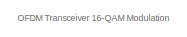
[diagram: root canvas - part 1/5, top center region]
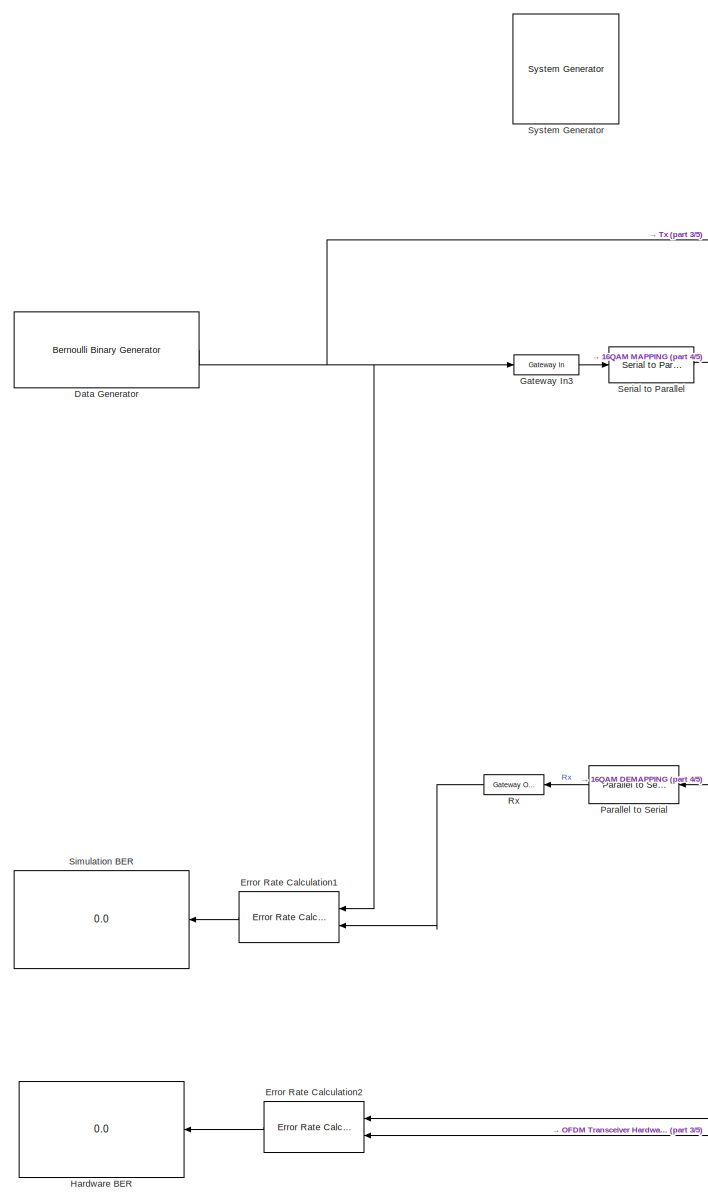
[diagram: root canvas - part 2/5, left side, full height]
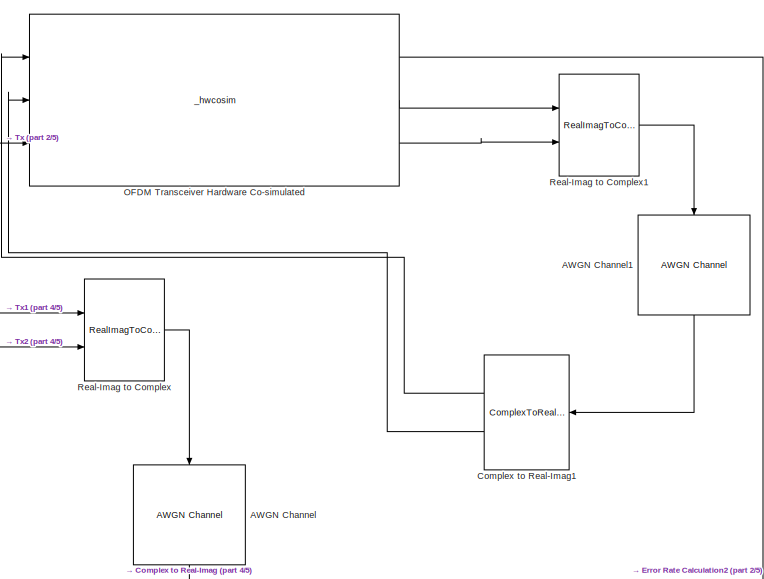
[diagram: root canvas - part 3/5, middle right region]
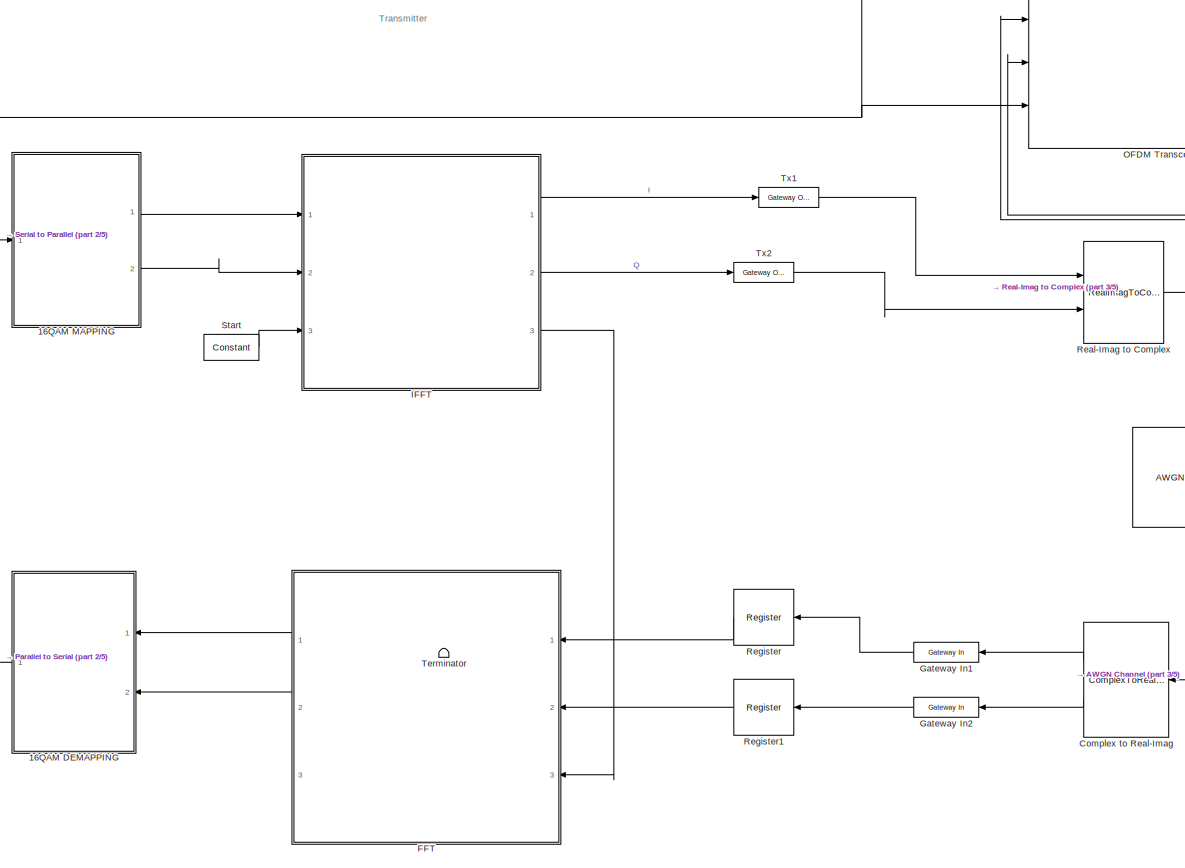
[diagram: root canvas - part 4/5, central region]
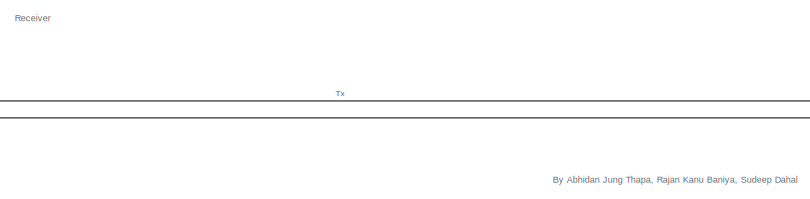
[diagram: root canvas - part 5/5, bottom center region]
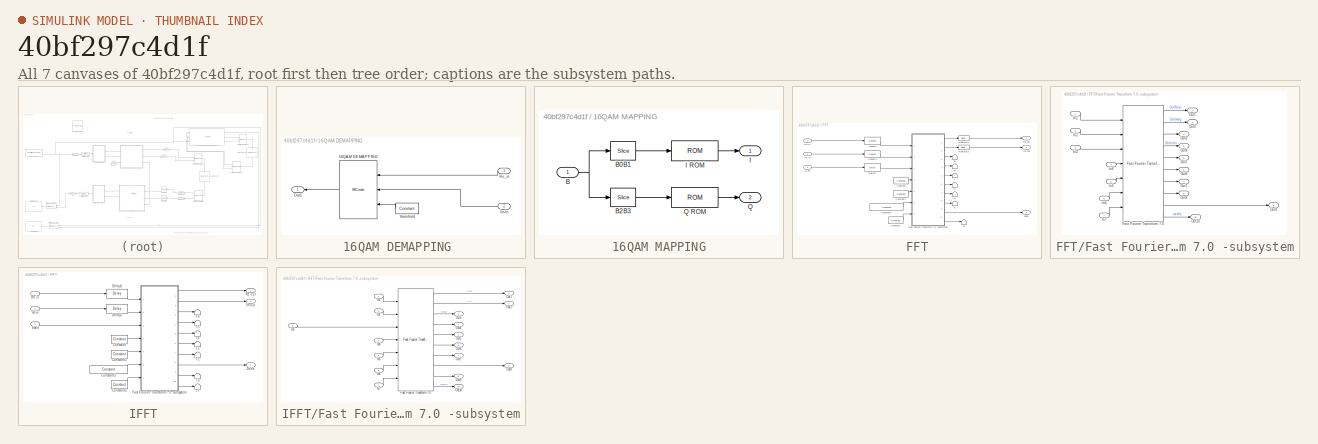
[diagram: thumbnail index - all 7 canvases of the model, root first then tree order]
MODEL slx_40bf297c4d1f
KIND model
BLOCK [Reference]  System Generator  REF=xbsIndex_r4/ System Generator
  AttributesFormatString = System\nGenerator
  Impl_file = ISE Defaults
  Ports = []
  SourceBlock = xbsIndex_r4/ System Generator
  SourceType = Xilinx System Generator Block
  Synth_file = XST Defaults
  Tag = genX
  UserDataPersistent = on
  block_type = sysgen
  block_version = 10.1.3
  clock_wrapper = Clock Enables
  core_generation = According to Block Masks
  dbl_ovrd = According to Block Masks
  dcm_input_clock_period = 100
  deprecated_control = off
  directory = ./netlist
  eval_field = 0
  has_advanced_control = 0
  incr_netlist = off
  infoedit = System Generator
  package = fg320
  part = xc3s500e
  proj_type = Project Navigator
  run_coregen = off
  sg_icon_stat = 106,110,0,0,token,white,0,58c5b5770fe5f7c311f53dbc6e73f0f6,right,,[ ],[ ]
  sg_mask_display = fprintf('','COMMENT: begin icon graphics');\npatch([0 106 106 0 0 ],[0 0 110 110 0 ],[1 1 1 ]);\npatch([2.9375 35.45 57.95 80.45 102.95 57.95 25.4375 2.9375 ],[79.975 79.975 102.475 79.975 102.475 102.475 102.475 79.975 ],[0.933333 0.203922 0.141176 ]);\npatch([25.4375 57.95 35.45 2.9375 25.4375 ],[57.475 57.475 79.975 79.975 57.475 ],[0.698039 0.0313725 0.219608 ]);\npatch([2.9375 35.45 57.95 25.4375...<+341ch>
  sggui_pos = 326,241,464,470
  simulink_period = 1
  speed = -4
  synthesis_tool = XST
  sysclk_period = 20
  testbench = off
  trim_vbits = Everywhere in SubSystem
  xilinxfamily = spartan3e
BLOCK [SubSystem] 16QAM DEMAPPING 
  FunctionWithSeparateData = off
  MaskHideContents = off
  MinAlgLoopOccurrences = off
  Opaque = off
  Ports = [2, 1]
  PropExecContextOutsideSubsystem = off
  RTWSystemCode = Auto
  RequestExecContextInheritance = off
BLOCK [Reference] 16QAM DEMAPPING /16QAM DEMAPPING  REF=xbsIndex_r4/MCode
  Ports = [3, 1]
  SourceBlock = xbsIndex_r4/MCode
  SourceType = Xilinx MCode Block Block
  block_type = mcode
  block_version = 10.1.3
  dbl_ovrd = off
  defparams = {}
  enable_debug = off
  enable_stdout = off
  explicit_period = off
  has_advanced_control = 0
  hide_port_list = {}
  infoedit = Pass input values to a MATLAB function for evaluation in Xilinx fixed-point type. The input ports of the block are input arguments of the function. The output ports of the block are output arguments of the function.
  inputsTable = {'boundInpExpr'=>['','',''],'inputs'=>['I','Q','Thrd']}
  mfname = QAM16_DEM
  outputsTable = {'outputs'=>['B'],'suppressOut'=>['off']}
  period = 1
  sg_icon_stat = 90,140,3,1,white,blue,0,065eba02,left,,[ ],[ ]
  sg_mask_display = fprintf('','COMMENT: begin icon graphics');\npatch([0 90 90 0 0 ],[0 0 140 140 0 ],[0.77 0.82 0.91 ]);\nplot([0 90 90 0 0 ],[0 0 140 140 0 ]);\npatch([18.3 35.64 47.64 59.64 71.64 47.64 30.3 18.3 ],[83.32 83.32 95.32 83.32 95.32 95.32 95.32 83.32 ],[1 1 1 ]);\npatch([30.3 47.64 35.64 18.3 30.3 ],[71.32 71.32 83.32 83.32 71.32 ],[0.931 0.946 0.973 ]);\npatch([18.3 35.64 47.64 30.3 18.3 ],[59.32 59.32 71...<+491ch>
  sggui_pos = 124,179,348,490
  suppress_output = 1
  xl_area = [60 0 0 110 0 0 0]
  xl_use_area = off
BLOCK [Inport] 16QAM DEMAPPING /Im-in
  IconDisplay = Port number
  Port = 2
BLOCK [Outport] 16QAM DEMAPPING /Out1
  IconDisplay = Port number
BLOCK [Inport] 16QAM DEMAPPING /Re_in
  IconDisplay = Port number
BLOCK [Reference] 16QAM DEMAPPING /threshold  REF=xbsIndex_r4/Constant
  Ports = [0, 1]
  SourceBlock = xbsIndex_r4/Constant
  SourceType = Xilinx Constant Block Block
  arith_type = Signed (2's comp)
  bin_pt = 15
  block_type = constant
  block_version = 10.1.3
  carry = CIN
  const = 0.25
  dbl_ovrd = off
  dsp48_infoedit = The use of this block for DSP48 instructions is deprecated.  Please use the Opmode block.
  equ = P=C
  exp_width = 8
  explicit_period = off
  frac_width = 24
  gui_display_data_type = Fixed-point
  has_advanced_control = 0
  inp1 = P
  inp2 = PCIN>>17
  n_bits = 16
  opr = +
  opselect = C
  period = 1
  preci_type = Single
  sg_icon_stat = 55,26,0,1,white,blue,0,e9bd18fb,left,,[ ],[ ]
  sg_mask_display = fprintf('','COMMENT: begin icon graphics');\npatch([0 55 55 0 0 ],[0 0 26 26 0 ],[0.77 0.82 0.91 ]);\nplot([0 55 55 0 0 ],[0 0 26 26 0 ]);\npatch([20.325 24.66 27.66 30.66 33.66 27.66 23.325 20.325 ],[16.33 16.33 19.33 16.33 19.33 19.33 19.33 16.33 ],[1 1 1 ]);\npatch([23.325 27.66 24.66 20.325 23.325 ],[13.33 13.33 16.33 16.33 13.33 ],[0.931 0.946 0.973 ]);\npatch([20.325 24.66 27.66 23.325 20.325 ],[...<+326ch>
  sggui_pos = 597,182,414,392
BLOCK [SubSystem] 16QAM MAPPING
  FunctionWithSeparateData = off
  MaskHideContents = off
  MinAlgLoopOccurrences = off
  Opaque = off
  Ports = [1, 2]
  PropExecContextOutsideSubsystem = off
  RTWSystemCode = Auto
  RequestExecContextInheritance = off
BLOCK [Inport] 16QAM MAPPING/B
  IconDisplay = Port number
BLOCK [Reference] 16QAM MAPPING/B0B1  REF=xbsIndex_r4/Slice
  Ports = [1, 1]
  SourceBlock = xbsIndex_r4/Slice
  SourceType = Xilinx Bit Slice Extractor Block
  base0 = LSB of Input
  base1 = LSB of Input
  bit0 = 0
  bit1 = 0
  block_type = slice
  block_version = 11.2
  boolean_output = off
  dbl_ovrd = off
  has_advanced_control = 0
  infoedit = Extracts a given range of bits from each input sample and presents it at the output.  The output type is ordinarily unsigned with binary point at zero, but can be Boolean when the slice is one bit wide.<br><br>Hardware notes: In hardware this block costs nothing.
  mode = Lower Bit Location + Width
  nbits = 2
  sg_icon_stat = 35,26,1,1,white,blue,0,1fd851a7,right,,[ ],[ ]
  sg_mask_display = fprintf('','COMMENT: begin icon graphics');\npatch([0 35 35 0 0 ],[0 0 26 26 0 ],[0.77 0.82 0.91 ]);\nplot([0 35 35 0 0 ],[0 0 26 26 0 ]);\npatch([10.325 14.66 17.66 20.66 23.66 17.66 13.325 10.325 ],[16.33 16.33 19.33 16.33 19.33 19.33 19.33 16.33 ],[1 1 1 ]);\npatch([13.325 17.66 14.66 10.325 13.325 ],[13.33 13.33 16.33 16.33 13.33 ],[0.931 0.946 0.973 ]);\npatch([10.325 14.66 17.66 13.325 10.325 ],[...<+328ch>
  sggui_pos = 507,171,460,424
BLOCK [Reference] 16QAM MAPPING/B2B3  REF=xbsIndex_r4/Slice
  Ports = [1, 1]
  SourceBlock = xbsIndex_r4/Slice
  SourceType = Xilinx Bit Slice Extractor Block
  base0 = MSB of Input
  base1 = MSB of Input
  bit0 = 0
  bit1 = 0
  block_type = slice
  block_version = 11.2
  boolean_output = off
  dbl_ovrd = off
  has_advanced_control = 0
  infoedit = Extracts a given range of bits from each input sample and presents it at the output.  The output type is ordinarily unsigned with binary point at zero, but can be Boolean when the slice is one bit wide.<br><br>Hardware notes: In hardware this block costs nothing.
  mode = Upper Bit Location + Width
  nbits = 2
  sg_icon_stat = 35,26,1,1,white,blue,0,1fd851a7,right,,[ ],[ ]
  sg_mask_display = fprintf('','COMMENT: begin icon graphics');\npatch([0 35 35 0 0 ],[0 0 26 26 0 ],[0.77 0.82 0.91 ]);\nplot([0 35 35 0 0 ],[0 0 26 26 0 ]);\npatch([10.325 14.66 17.66 20.66 23.66 17.66 13.325 10.325 ],[16.33 16.33 19.33 16.33 19.33 19.33 19.33 16.33 ],[1 1 1 ]);\npatch([13.325 17.66 14.66 10.325 13.325 ],[13.33 13.33 16.33 16.33 13.33 ],[0.931 0.946 0.973 ]);\npatch([10.325 14.66 17.66 13.325 10.325 ],[...<+328ch>
  sggui_pos = 498,213,460,424
BLOCK [Outport] 16QAM MAPPING/I
  IconDisplay = Port number
BLOCK [Reference] 16QAM MAPPING/I ROM  REF=xbsIndex_r4/ROM
  Ports = [1, 1]
  SourceBlock = xbsIndex_r4/ROM
  SourceType = Xilinx Single Port Read-Only Memory Block
  arith_type = Signed  (2's comp)
  bin_pt = 15
  block_type = sprom
  block_version = 10.1.3
  dbl_ovrd = off
  depth = 4
  distributed_mem = Block RAM
  en = off
  exp_width = 8
  frac_width = 24
  gui_display_data_type = Fixed-point
  has_advanced_control = 0
  initVector = [-3 +3 -1 +1]./3
  init_reg = 0
  latency = 1
  n_bits = 16
  optimize = Area
  preci_type = Single
  rst = off
  sg_icon_stat = 65,28,1,1,white,blue,0,bbc23d60,right,,[ ],[ ]
  sg_mask_display = fprintf('','COMMENT: begin icon graphics');\npatch([0 65 65 0 0 ],[0 0 28 28 0 ],[0.77 0.82 0.91 ]);\nplot([0 65 65 0 0 ],[0 0 28 28 0 ]);\npatch([23.1 28.88 32.88 36.88 40.88 32.88 27.1 23.1 ],[18.44 18.44 22.44 18.44 22.44 22.44 22.44 18.44 ],[1 1 1 ]);\npatch([27.1 32.88 28.88 23.1 27.1 ],[14.44 14.44 18.44 18.44 14.44 ],[0.931 0.946 0.973 ]);\npatch([23.1 28.88 32.88 27.1 23.1 ],[10.44 10.44 14.44 ...<+348ch>
  sggui_pos = 172,101,482,308
  use_rpm = on
  xl_area = [0 0 1 0 0 0 0]
  xl_use_area = off
BLOCK [Outport] 16QAM MAPPING/Q
  IconDisplay = Port number
  Port = 2
BLOCK [Reference] 16QAM MAPPING/Q ROM  REF=xbsIndex_r4/ROM
  Ports = [1, 1]
  SourceBlock = xbsIndex_r4/ROM
  SourceType = Xilinx Single Port Read-Only Memory Block
  arith_type = Signed  (2's comp)
  bin_pt = 15
  block_type = sprom
  block_version = 10.1.3
  dbl_ovrd = off
  depth = 4
  distributed_mem = Block RAM
  en = off
  exp_width = 8
  frac_width = 24
  gui_display_data_type = Fixed-point
  has_advanced_control = 0
  initVector = [-3 +3 -1 +1]./3
  init_reg = 0
  latency = 1
  n_bits = 16
  optimize = Area
  preci_type = Single
  rst = off
  sg_icon_stat = 65,28,1,1,white,blue,0,bbc23d60,right,,[ ],[ ]
  sg_mask_display = fprintf('','COMMENT: begin icon graphics');\npatch([0 65 65 0 0 ],[0 0 28 28 0 ],[0.77 0.82 0.91 ]);\nplot([0 65 65 0 0 ],[0 0 28 28 0 ]);\npatch([23.1 28.88 32.88 36.88 40.88 32.88 27.1 23.1 ],[18.44 18.44 22.44 18.44 22.44 22.44 22.44 18.44 ],[1 1 1 ]);\npatch([27.1 32.88 28.88 23.1 27.1 ],[14.44 14.44 18.44 18.44 14.44 ],[0.931 0.946 0.973 ]);\npatch([23.1 28.88 32.88 27.1 23.1 ],[10.44 10.44 14.44 ...<+348ch>
  sggui_pos = 135,309,348,308
  use_rpm = on
  xl_area = [0 0 1 0 0 0 0]
  xl_use_area = off
BLOCK [Reference] AWGN Channel  REF=commchan3/AWGN
Channel
  EbNodB = 10
  EsNodB = 40
  InputProcessing = Inherited (this choice will be removed - see release notes)
  Ports = [1, 1]
  Ps = 1
  SNRdB = 20
  SourceBlock = commchan3/AWGN\nChannel
  SourceType = AWGN Channel
  Tsym = 4e-6/80
  UserDataPersistent = on
  bitsPerSym = 2
  noiseMode = Signal to noise ratio  (SNR)
  seed = 67
  variance = 1
BLOCK [Reference] AWGN Channel1  REF=commchan3/AWGN
Channel
  EbNodB = 10
  EsNodB = 40
  InputProcessing = Inherited (this choice will be removed - see release notes)
  Ports = [1, 1]
  Ps = 1
  SNRdB = 20
  SourceBlock = commchan3/AWGN\nChannel
  SourceType = AWGN Channel
  Tsym = 4e-6/80
  UserDataPersistent = on
  bitsPerSym = 2
  noiseMode = Signal to noise ratio  (SNR)
  seed = 67
  variance = 1
BLOCK [ComplexToRealImag] Complex to Real-Imag
  Ports = [1, 2]
BLOCK [ComplexToRealImag] Complex to Real-Imag1
  Ports = [1, 2]
BLOCK [Reference] Data Generator  REF=commrandsrc2/Bernoulli Binary
Generator
  P = 0.5
  Ports = [0, 1]
  SourceBlock = commrandsrc2/Bernoulli Binary\nGenerator
  SourceType = Bernoulli Binary Generator
  Ts = 1
  frameBased = off
  orient = off
  outDataType = double
  sampPerFrame = 1
  seed = 61
BLOCK [Reference] Error Rate Calculation1  REF=commsink2/Error Rate
Calculation
  N = 1672
  PMode = Port
  Ports = [2, 1]
  RsMode2 = off
  SourceBlock = commsink2/Error Rate\nCalculation
  SourceType = Error Rate Calculation
  WsName = ErrorVec
  cp_mode = Entire frame
  maxBits = 1e6
  numErr = 100
  st_delay = 700
  stop = off
  subframe = []
BLOCK [Reference] Error Rate Calculation2  REF=commsink2/Error Rate
Calculation
  N = 1672
  PMode = Port
  Ports = [2, 1]
  RsMode2 = off
  SourceBlock = commsink2/Error Rate\nCalculation
  SourceType = Error Rate Calculation
  WsName = ErrorVec
  cp_mode = Entire frame
  maxBits = 1e6
  numErr = 100
  st_delay = 700
  stop = off
  subframe = []
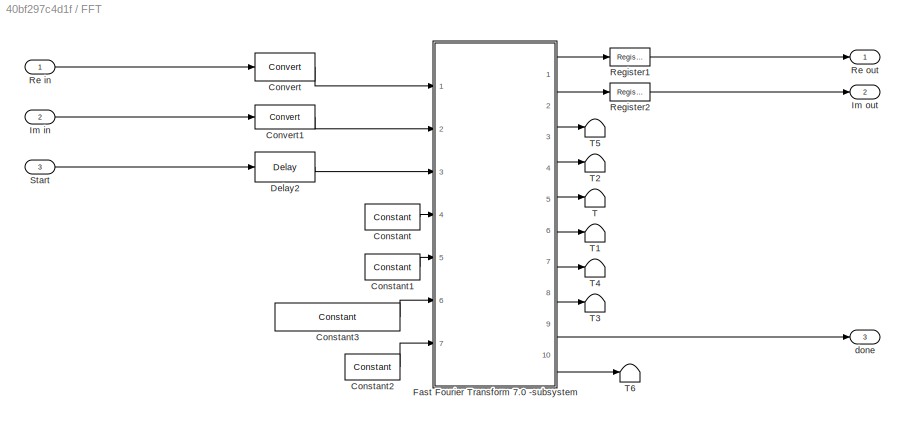
BLOCK [SubSystem] FFT
  FunctionWithSeparateData = off
  MaskHideContents = off
  MinAlgLoopOccurrences = off
  Opaque = off
  Ports = [3, 3]
  PropExecContextOutsideSubsystem = off
  RTWSystemCode = Auto
  RequestExecContextInheritance = off
BLOCK [Reference] FFT/Constant  REF=xbsIndex_r4/Constant
  Ports = [0, 1]
  SourceBlock = xbsIndex_r4/Constant
  SourceType = Xilinx Constant Block Block
  arith_type = Boolean
  bin_pt = 14
  block_type = constant
  block_version = 10.1.3
  carry = CIN
  const = 1
  dbl_ovrd = off
  dsp48_infoedit = The use of this block for DSP48 instructions is deprecated.  Please use the Opmode block.
  equ = P=C
  exp_width = 8
  explicit_period = off
  frac_width = 24
  gui_display_data_type = Fixed-point
  has_advanced_control = 0
  inp1 = P
  inp2 = PCIN>>17
  n_bits = 16
  opr = +
  opselect = C
  period = 1
  preci_type = Single
  sg_icon_stat = 55,26,0,1,white,blue,0,1c72b5be,right,,[ ],[ ]
  sg_mask_display = fprintf('','COMMENT: begin icon graphics');\npatch([0 55 55 0 0 ],[0 0 26 26 0 ],[0.77 0.82 0.91 ]);\nplot([0 55 55 0 0 ],[0 0 26 26 0 ]);\npatch([20.325 24.66 27.66 30.66 33.66 27.66 23.325 20.325 ],[16.33 16.33 19.33 16.33 19.33 19.33 19.33 16.33 ],[1 1 1 ]);\npatch([23.325 27.66 24.66 20.325 23.325 ],[13.33 13.33 16.33 16.33 13.33 ],[0.931 0.946 0.973 ]);\npatch([20.325 24.66 27.66 23.325 20.325 ],[...<+323ch>  <repeated x7 — deduplicated; at blocks: Constant, Constant1, Constant2, Start>
  sggui_pos = 20,20,414,344
BLOCK [Reference] FFT/Constant1  REF=xbsIndex_r4/Constant
  Ports = [0, 1]
  SourceBlock = xbsIndex_r4/Constant
  SourceType = Xilinx Constant Block Block
  arith_type = Boolean
  bin_pt = 14
  block_type = constant
  block_version = 10.1.3
  carry = CIN
  const = 1
  dbl_ovrd = off
  dsp48_infoedit = The use of this block for DSP48 instructions is deprecated.  Please use the Opmode block.
  equ = P=C
  exp_width = 8
  explicit_period = off
  frac_width = 24
  gui_display_data_type = Fixed-point
  has_advanced_control = 0
  inp1 = P
  inp2 = PCIN>>17
  n_bits = 16
  opr = +
  opselect = C
  period = 1
  preci_type = Single
  sg_icon_stat = 55,26,0,1,white,blue,0,1c72b5be,right,,[ ],[ ]
  sggui_pos = 20,20,414,344
BLOCK [Reference] FFT/Constant2  REF=xbsIndex_r4/Constant
  Ports = [0, 1]
  SourceBlock = xbsIndex_r4/Constant
  SourceType = Xilinx Constant Block Block
  arith_type = Boolean
  bin_pt = 14
  block_type = constant
  block_version = 10.1.3
  carry = CIN
  const = 1
  dbl_ovrd = off
  dsp48_infoedit = The use of this block for DSP48 instructions is deprecated.  Please use the Opmode block.
  equ = P=C
  exp_width = 8
  explicit_period = off
  frac_width = 24
  gui_display_data_type = Fixed-point
  has_advanced_control = 0
  inp1 = P
  inp2 = PCIN>>17
  n_bits = 16
  opr = +
  opselect = C
  period = 1
  preci_type = Single
  sg_icon_stat = 55,26,0,1,white,blue,0,1c72b5be,right,,[ ],[ ]
  sggui_pos = 20,20,414,344
BLOCK [Reference] FFT/Constant3  REF=xbsIndex_r4/Constant
  Ports = [0, 1]
  SourceBlock = xbsIndex_r4/Constant
  SourceType = Xilinx Constant Block Block
  arith_type = Unsigned
  bin_pt = 0
  block_type = constant
  block_version = 10.1.3
  carry = CIN
  const = bin2dec('00001')
  dbl_ovrd = off
  dsp48_infoedit = The use of this block for DSP48 instructions is deprecated.  Please use the Opmode block.
  equ = P=C
  exp_width = 8
  explicit_period = off
  frac_width = 24
  gui_display_data_type = Fixed-point
  has_advanced_control = 0
  inp1 = P
  inp2 = PCIN>>17
  n_bits = 6
  opr = +
  opselect = C
  period = 1
  preci_type = Single
  sg_icon_stat = 125,28,0,1,white,blue,0,1c72b5be,right,,[ ],[ ]
  sg_mask_display = fprintf('','COMMENT: begin icon graphics');\npatch([0 125 125 0 0 ],[0 0 28 28 0 ],[0.77 0.82 0.91 ]);\nplot([0 125 125 0 0 ],[0 0 28 28 0 ]);\npatch([53.1 58.88 62.88 66.88 70.88 62.88 57.1 53.1 ],[18.44 18.44 22.44 18.44 22.44 22.44 22.44 18.44 ],[1 1 1 ]);\npatch([57.1 62.88 58.88 53.1 57.1 ],[14.44 14.44 18.44 18.44 14.44 ],[0.931 0.946 0.973 ]);\npatch([53.1 58.88 62.88 57.1 53.1 ],[10.44 10.44 14...<+303ch>
  sggui_pos = 366,180,414,344
BLOCK [Reference] FFT/Convert  REF=xbsIndex_r4/Convert
  Ports = [1, 1]
  SourceBlock = xbsIndex_r4/Convert
  SourceType = Xilinx Type Converter Block
  arith_type = Signed  (2's comp)
  bin_pt = 15
  block_type = convert
  block_version = 9.1
  dbl_ovrd = off
  en = off
  exp_bits = 8
  float_type = Single
  fraction_bits = 24
  gui_display_data_type = Fixed-point
  has_advanced_control = 0
  infoedit = Hardware notes: rounding and saturating require hardware resources; truncating and wrapping do not.
  latency = 1
  n_bits = 16
  overflow = Wrap
  pipeline = off
  quantization = Truncate
  sg_icon_stat = 60,28,1,1,white,blue,0,0c6bad53,right,,[ ],[ ]
  sg_mask_display = fprintf('','COMMENT: begin icon graphics');\npatch([0 60 60 0 0 ],[0 0 28 28 0 ],[0.77 0.82 0.91 ]);\nplot([0 60 60 0 0 ],[0 0 28 28 0 ]);\npatch([21.1 26.88 30.88 34.88 38.88 30.88 25.1 21.1 ],[18.44 18.44 22.44 18.44 22.44 22.44 22.44 18.44 ],[1 1 1 ]);\npatch([25.1 30.88 26.88 21.1 25.1 ],[14.44 14.44 18.44 18.44 14.44 ],[0.931 0.946 0.973 ]);\npatch([21.1 26.88 30.88 25.1 21.1 ],[10.44 10.44 14.44 ...<+387ch>
  sggui_pos = 20,20,470,366
  xl_area = [0 16 0 0 0 0 0]
  xl_use_area = off
BLOCK [Reference] FFT/Convert1  REF=xbsIndex_r4/Convert
  Ports = [1, 1]
  SourceBlock = xbsIndex_r4/Convert
  SourceType = Xilinx Type Converter Block
  arith_type = Signed  (2's comp)
  bin_pt = 15
  block_type = convert
  block_version = 9.1
  dbl_ovrd = off
  en = off
  exp_bits = 8
  float_type = Single
  fraction_bits = 24
  gui_display_data_type = Fixed-point
  has_advanced_control = 0
  infoedit = Hardware notes: rounding and saturating require hardware resources; truncating and wrapping do not.
  latency = 1
  n_bits = 16
  overflow = Wrap
  pipeline = off
  quantization = Truncate
  sg_icon_stat = 60,24,1,1,white,blue,0,0c6bad53,right,,[ ],[ ]
  sg_mask_display = fprintf('','COMMENT: begin icon graphics');\npatch([0 60 60 0 0 ],[0 0 24 24 0 ],[0.77 0.82 0.91 ]);\nplot([0 60 60 0 0 ],[0 0 24 24 0 ]);\npatch([23.325 27.66 30.66 33.66 36.66 30.66 26.325 23.325 ],[15.33 15.33 18.33 15.33 18.33 18.33 18.33 15.33 ],[1 1 1 ]);\npatch([26.325 30.66 27.66 23.325 26.325 ],[12.33 12.33 15.33 15.33 12.33 ],[0.931 0.946 0.973 ]);\npatch([23.325 27.66 30.66 26.325 23.325 ],[...<+405ch>
  sggui_pos = 20,20,470,366
  xl_area = [0 16 0 0 0 0 0]
  xl_use_area = off
BLOCK [Reference] FFT/Delay2  REF=xbsIndex_r4/Delay
  Ports = [1, 1]
  SourceBlock = xbsIndex_r4/Delay
  SourceType = Xilinx Delay Block
  block_type = delay
  block_version = 10.1.3
  dbl_ovrd = off
  en = off
  has_advanced_control = 0
  infoedit = Hardware notes: A delay line is a chain, each link of which is an SRL16 followed by a flip-flop.
  infoeditControl = Selection of Reset will increase slice count due to use of real FFs and instead of SRLs
  latency = 2
  reg_retiming = off
  rst = off
  sg_icon_stat = 60,30,1,1,white,blue,0,85ce9542,right,,[ ],[ ]
  sg_mask_display = fprintf('','COMMENT: begin icon graphics');\npatch([0 60 60 0 0 ],[0 0 30 30 0 ],[0.77 0.82 0.91 ]);\nplot([0 60 60 0 0 ],[0 0 30 30 0 ]);\npatch([21.1 26.88 30.88 34.88 38.88 30.88 25.1 21.1 ],[19.44 19.44 23.44 19.44 23.44 23.44 23.44 19.44 ],[1 1 1 ]);\npatch([25.1 30.88 26.88 21.1 25.1 ],[15.44 15.44 19.44 19.44 15.44 ],[0.931 0.946 0.973 ]);\npatch([21.1 26.88 30.88 25.1 21.1 ],[11.44 11.44 15.44 ...<+304ch>
  sggui_pos = 183,233,348,282
  xl_area = [1 1 0 1 0 0 0]
  xl_use_area = off
BLOCK [SubSystem] FFT/Fast Fourier Transform 7.0 -subsystem
  FunctionWithSeparateData = off
  MaskHideContents = off
  MinAlgLoopOccurrences = off
  Opaque = off
  Ports = [7, 10]
  PropExecContextOutsideSubsystem = off
  RTWSystemCode = Auto
  RequestExecContextInheritance = off
  UserDataPersistent = on
BLOCK [Reference] FFT/Fast Fourier Transform 7.0 -subsystem/Fast Fourier Transform 7.0   REF=xbsIndex_r4/Fast Fourier Transform 7.0 
  Ports = [7, 10]
  SourceBlock = xbsIndex_r4/Fast Fourier Transform 7.0
  SourceType = Xilinx Fast Fourier Transform 7.0 Block
  block_type = xfft_v7_0
  block_version = 11.2
  butterfly_type = use_luts
  ce = off
  channels = 1
  complex_mult_type = use_mults_resources
  cyclic_prefix_insertion = off
  dsptool_ready = true
  has_advanced_control = 0
  implementation_options = automatically_select
  input_data_offset = no_offset
  input_ordering = natural_order
  input_width = 16
  ip_name = Fast Fourier Transform
  ip_version = 7.0
  ipcore_fpga_part = xlipgetpartsetting(gcb, {'virtex4', 'xc4vsx35', '-10', 'ff668'})
  memory_options_data = block_ram
  memory_options_hybrid = off
  memory_options_phase_factors = block_ram
  memory_options_reorder = distributed_ram
  number_of_stages_using_block_ram_for_data_and_phase_factors = 0
  output_ordering = natural_order
  ovflo = on
  phase_factor_width = 16
  port_translation_map = { 'ce' => 'en', 'sclr' => 'rst' }
  rounding_modes = truncation
  run_time_configurable_transform_length = off
  scaling_options = scaled
  sclr = off
  sg_icon_stat = 120,343,7,10,white,blue,0,731b7867,right,,[ ],[ ]
  sg_mask_display = fprintf('','COMMENT: begin icon graphics');\npatch([0 120 120 0 0 ],[0 0 343 343 0 ],[0.77 0.82 0.91 ]);\nplot([0 120 120 0 0 ],[0 0 343 343 0 ]);\npatch([22.175 46.74 63.74 80.74 97.74 63.74 39.175 22.175 ],[189.87 189.87 206.87 189.87 206.87 206.87 206.87 189.87 ],[1 1 1 ]);\npatch([39.175 63.74 46.74 22.175 39.175 ],[172.87 172.87 189.87 189.87 172.87 ],[0.931 0.946 0.973 ]);\npatch([22.175 46.74 63...<+1127ch>
  sggui_pos = 642,160,667,564
  simulation_model = fftv7_CModel:fftv7_cmodel
  simulation_type = external_xfix
  target_clock_frequency = 50
  target_data_throughput = 50
  transform_length = 64
  wrapper_available = true
  xl_area = [1127 1579 1 1572 0 22 0]
  xl_use_area = off
BLOCK [Inport] FFT/Fast Fourier Transform 7.0 -subsystem/In1
  IconDisplay = Port number
BLOCK [Inport] FFT/Fast Fourier Transform 7.0 -subsystem/In2
  IconDisplay = Port number
  Port = 2
BLOCK [Inport] FFT/Fast Fourier Transform 7.0 -subsystem/In3
  IconDisplay = Port number
  Port = 3
BLOCK [Inport] FFT/Fast Fourier Transform 7.0 -subsystem/In4
  IconDisplay = Port number
  Port = 4
BLOCK [Inport] FFT/Fast Fourier Transform 7.0 -subsystem/In5
  IconDisplay = Port number
  Port = 5
BLOCK [Inport] FFT/Fast Fourier Transform 7.0 -subsystem/In6
  IconDisplay = Port number
  Port = 6
BLOCK [Inport] FFT/Fast Fourier Transform 7.0 -subsystem/In7
  IconDisplay = Port number
  Port = 7
BLOCK [Outport] FFT/Fast Fourier Transform 7.0 -subsystem/Out1
  IconDisplay = Port number
BLOCK [Outport] FFT/Fast Fourier Transform 7.0 -subsystem/Out10
  IconDisplay = Port number
  Port = 10
BLOCK [Outport] FFT/Fast Fourier Transform 7.0 -subsystem/Out2
  IconDisplay = Port number
  Port = 2
BLOCK [Outport] FFT/Fast Fourier Transform 7.0 -subsystem/Out3
  IconDisplay = Port number
  Port = 3
BLOCK [Outport] FFT/Fast Fourier Transform 7.0 -subsystem/Out4
  IconDisplay = Port number
  Port = 4
BLOCK [Outport] FFT/Fast Fourier Transform 7.0 -subsystem/Out5
  IconDisplay = Port number
  Port = 5
BLOCK [Outport] FFT/Fast Fourier Transform 7.0 -subsystem/Out6
  IconDisplay = Port number
  Port = 6
BLOCK [Outport] FFT/Fast Fourier Transform 7.0 -subsystem/Out7
  IconDisplay = Port number
  Port = 7
BLOCK [Outport] FFT/Fast Fourier Transform 7.0 -subsystem/Out8
  IconDisplay = Port number
  Port = 8
BLOCK [Outport] FFT/Fast Fourier Transform 7.0 -subsystem/Out9
  IconDisplay = Port number
  Port = 9
BLOCK [Inport] FFT/Im in
  IconDisplay = Port number
  Port = 2
BLOCK [Outport] FFT/Im out
  IconDisplay = Port number
  Port = 2
BLOCK [Inport] FFT/Re in
  IconDisplay = Port number
BLOCK [Outport] FFT/Re out
  IconDisplay = Port number
BLOCK [Reference] FFT/Register1  REF=xbsIndex_r4/Register
  Ports = [1, 1]
  SourceBlock = xbsIndex_r4/Register
  SourceType = Xilinx Register Block
  block_type = register
  block_version = 9.1
  dbl_ovrd = off
  en = off
  has_advanced_control = 0
  init = 0
  rst = off
  sg_icon_stat = 40,18,1,1,white,blue,0,c80657c5,right,,[ ],[ ]
  sg_mask_display = fprintf('','COMMENT: begin icon graphics');\npatch([0 40 40 0 0 ],[0 0 18 18 0 ],[0.77 0.82 0.91 ]);\nplot([0 40 40 0 0 ],[0 0 18 18 0 ]);\npatch([15.55 18.44 20.44 22.44 24.44 20.44 17.55 15.55 ],[11.22 11.22 13.22 11.22 13.22 13.22 13.22 11.22 ],[1 1 1 ]);\npatch([17.55 20.44 18.44 15.55 17.55 ],[9.22 9.22 11.22 11.22 9.22 ],[0.931 0.946 0.973 ]);\npatch([15.55 18.44 20.44 17.55 15.55 ],[7.22 7.22 9....<+388ch>
  sggui_pos = -1,-1,-1,-1
  xl_area = [8 16 0 0 0 0 0]
  xl_use_area = off
BLOCK [Reference] FFT/Register2  REF=xbsIndex_r4/Register
  Ports = [1, 1]
  SourceBlock = xbsIndex_r4/Register
  SourceType = Xilinx Register Block
  block_type = register
  block_version = 9.1
  dbl_ovrd = off
  en = off
  has_advanced_control = 0
  init = 0
  rst = off
  sg_icon_stat = 40,18,1,1,white,blue,0,c80657c5,right,,[ ],[ ]
  sg_mask_display = fprintf('','COMMENT: begin icon graphics');\npatch([0 40 40 0 0 ],[0 0 18 18 0 ],[0.77 0.82 0.91 ]);\nplot([0 40 40 0 0 ],[0 0 18 18 0 ]);\npatch([15.55 18.44 20.44 22.44 24.44 20.44 17.55 15.55 ],[11.22 11.22 13.22 11.22 13.22 13.22 13.22 11.22 ],[1 1 1 ]);\npatch([17.55 20.44 18.44 15.55 17.55 ],[9.22 9.22 11.22 11.22 9.22 ],[0.931 0.946 0.973 ]);\npatch([15.55 18.44 20.44 17.55 15.55 ],[7.22 7.22 9....<+388ch>
  sggui_pos = -1,-1,-1,-1
  xl_area = [8 16 0 0 0 0 0]
  xl_use_area = off
BLOCK [Inport] FFT/Start
  IconDisplay = Port number
  Port = 3
BLOCK [Terminator] FFT/T
BLOCK [Terminator] FFT/T1
BLOCK [Terminator] FFT/T2
BLOCK [Terminator] FFT/T3
BLOCK [Terminator] FFT/T4
BLOCK [Terminator] FFT/T5
BLOCK [Terminator] FFT/T6
BLOCK [Outport] FFT/done
  IconDisplay = Port number
  Port = 3
BLOCK [Reference] Gateway In1  REF=xbsIndex_r4/Gateway In
  ADCChannel = '1'
  LOCs = {}
  Ports = [1, 1]
  SourceBlock = xbsIndex_r4/Gateway In
  SourceType = Xilinx Gateway In Block
  UseAsADC = off
  arith_type = Signed  (2's comp)
  bin_pt = 15
  block_type = gatewayin
  dbl_ovrd = off
  exp_width = 8
  frac_width = 24
  gui_display_data_type = Fixed-point
  has_advanced_control = 0
  hdl_port = on
  infoedit = Gateway in block.  Converts inputs of type Simulink integer, single, double and fixed-point to  Xilinx fixed-point or floating-point data type.<br><br>Hardware notes:  In hardware these blocks become top level input ports.  <repeated x3 — deduplicated; at blocks: Gateway In1, Gateway In2, Gateway In3>
  inherit_from_input = off
  locs_specified = off
  n_bits = 16
  overflow = Saturate
  period = 4
  preci_type = Single
  quantization = Round  (unbiased: +/- Inf)
  sg_icon_stat = 65,20,1,1,white,yellow,1,00d3666e,left,,[ ],[ ]
  sg_mask_display = fprintf('','COMMENT: begin icon graphics');\npatch([0 65 65 0 0 ],[0 0 20 20 0 ],[0.95 0.93 0.65 ]);\nplot([0 65 65 0 0 ],[0 0 20 20 0 ]);\npatch([27.55 30.44 32.44 34.44 36.44 32.44 29.55 27.55 ],[12.22 12.22 14.22 12.22 14.22 14.22 14.22 12.22 ],[1 1 1 ]);\npatch([29.55 32.44 30.44 27.55 29.55 ],[10.22 10.22 12.22 12.22 10.22 ],[0.985 0.979 0.895 ]);\npatch([27.55 30.44 32.44 29.55 27.55 ],[8.22 8.22...<+383ch>  <repeated x3 — deduplicated; at blocks: Gateway In1, Gateway In2, Gateway In3>
  sggui_pos = -1,-1,-1,-1
  timing_constraint = None
  xl_area = [0,0,0,0,0,0,0]
  xl_use_area = off
BLOCK [Reference] Gateway In2  REF=xbsIndex_r4/Gateway In
  ADCChannel = '1'
  LOCs = {}
  Ports = [1, 1]
  SourceBlock = xbsIndex_r4/Gateway In
  SourceType = Xilinx Gateway In Block
  UseAsADC = off
  arith_type = Signed  (2's comp)
  bin_pt = 15
  block_type = gatewayin
  dbl_ovrd = off
  exp_width = 8
  frac_width = 24
  gui_display_data_type = Fixed-point
  has_advanced_control = 0
  hdl_port = on
  inherit_from_input = off
  locs_specified = off
  n_bits = 16
  overflow = Saturate
  period = 4
  preci_type = Single
  quantization = Round  (unbiased: +/- Inf)
  sg_icon_stat = 65,20,1,1,white,yellow,1,00d3666e,left,,[ ],[ ]
  sggui_pos = -1,-1,-1,-1
  timing_constraint = None
  xl_area = [0,0,0,0,0,0,0]
  xl_use_area = off
BLOCK [Reference] Gateway In3  REF=xbsIndex_r4/Gateway In
  ADCChannel = '1'
  LOCs = {}
  Ports = [1, 1]
  SourceBlock = xbsIndex_r4/Gateway In
  SourceType = Xilinx Gateway In Block
  UseAsADC = off
  arith_type = Unsigned
  bin_pt = 0
  block_type = gatewayin
  dbl_ovrd = off
  exp_width = 8
  frac_width = 24
  gui_display_data_type = Fixed-point
  has_advanced_control = 0
  hdl_port = on
  inherit_from_input = off
  locs_specified = off
  n_bits = 1
  overflow = Saturate
  period = 1
  preci_type = Single
  quantization = Round  (unbiased: +/- Inf)
  sg_icon_stat = 65,20,1,1,white,yellow,1,00d3666e,right,,[ ],[ ]
  sggui_pos = 734,117,336,584
  timing_constraint = None
  xl_area = [0,0,0,0,0,0,0]
  xl_use_area = off
BLOCK [Display] Hardware BER
  Decimation = 1
  Ports = [1]
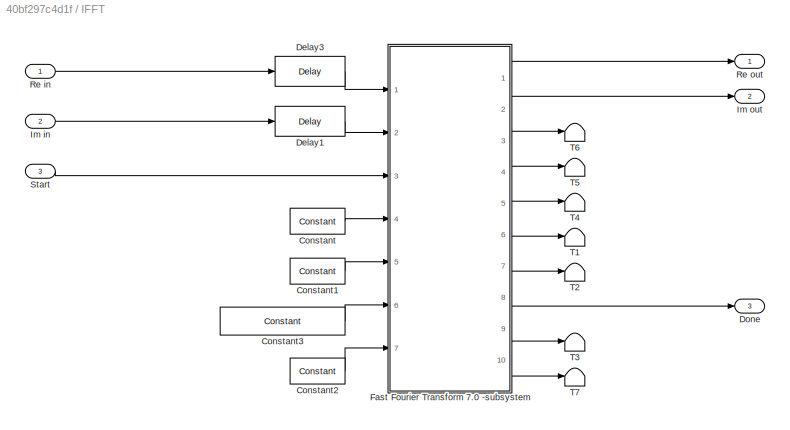
BLOCK [SubSystem] IFFT
  FunctionWithSeparateData = off
  MaskHideContents = off
  MinAlgLoopOccurrences = off
  Opaque = off
  Ports = [3, 3]
  PropExecContextOutsideSubsystem = off
  RTWSystemCode = Auto
  RequestExecContextInheritance = off
BLOCK [Reference] IFFT/Constant  REF=xbsIndex_r4/Constant
  Ports = [0, 1]
  SourceBlock = xbsIndex_r4/Constant
  SourceType = Xilinx Constant Block Block
  arith_type = Boolean
  bin_pt = 14
  block_type = constant
  block_version = 10.1.3
  carry = CIN
  const = 0
  dbl_ovrd = off
  dsp48_infoedit = The use of this block for DSP48 instructions is deprecated.  Please use the Opmode block.
  equ = P=C
  exp_width = 8
  explicit_period = off
  frac_width = 24
  gui_display_data_type = Fixed-point
  has_advanced_control = 0
  inp1 = P
  inp2 = PCIN>>17
  n_bits = 16
  opr = +
  opselect = C
  period = 1
  preci_type = Single
  sg_icon_stat = 55,26,0,1,white,blue,0,bf4ddd8b,right,,[ ],[ ]
  sggui_pos = 20,20,414,344
BLOCK [Reference] IFFT/Constant1  REF=xbsIndex_r4/Constant
  Ports = [0, 1]
  SourceBlock = xbsIndex_r4/Constant
  SourceType = Xilinx Constant Block Block
  arith_type = Boolean
  bin_pt = 14
  block_type = constant
  block_version = 10.1.3
  carry = CIN
  const = 1
  dbl_ovrd = off
  dsp48_infoedit = The use of this block for DSP48 instructions is deprecated.  Please use the Opmode block.
  equ = P=C
  exp_width = 8
  explicit_period = off
  frac_width = 24
  gui_display_data_type = Fixed-point
  has_advanced_control = 0
  inp1 = P
  inp2 = PCIN>>17
  n_bits = 16
  opr = +
  opselect = C
  period = 1
  preci_type = Single
  sg_icon_stat = 55,26,0,1,white,blue,0,1c72b5be,right,,[ ],[ ]
  sggui_pos = 20,20,414,344
BLOCK [Reference] IFFT/Constant2  REF=xbsIndex_r4/Constant
  Ports = [0, 1]
  SourceBlock = xbsIndex_r4/Constant
  SourceType = Xilinx Constant Block Block
  arith_type = Boolean
  bin_pt = 14
  block_type = constant
  block_version = 10.1.3
  carry = CIN
  const = 1
  dbl_ovrd = off
  dsp48_infoedit = The use of this block for DSP48 instructions is deprecated.  Please use the Opmode block.
  equ = P=C
  exp_width = 8
  explicit_period = off
  frac_width = 24
  gui_display_data_type = Fixed-point
  has_advanced_control = 0
  inp1 = P
  inp2 = PCIN>>17
  n_bits = 16
  opr = +
  opselect = C
  period = 1
  preci_type = Single
  sg_icon_stat = 55,26,0,1,white,blue,0,1c72b5be,right,,[ ],[ ]
  sggui_pos = 20,20,414,344
BLOCK [Reference] IFFT/Constant3  REF=xbsIndex_r4/Constant
  Ports = [0, 1]
  SourceBlock = xbsIndex_r4/Constant
  SourceType = Xilinx Constant Block Block
  arith_type = Unsigned
  bin_pt = 0
  block_type = constant
  block_version = 10.1.3
  carry = CIN
  const = bin2dec('001111')
  dbl_ovrd = off
  dsp48_infoedit = The use of this block for DSP48 instructions is deprecated.  Please use the Opmode block.
  equ = P=C
  exp_width = 8
  explicit_period = off
  frac_width = 24
  gui_display_data_type = Fixed-point
  has_advanced_control = 0
  inp1 = P
  inp2 = PCIN>>17
  n_bits = 6
  opr = +
  opselect = C
  period = 1
  preci_type = Single
  sg_icon_stat = 125,28,0,1,white,blue,0,1164c07c,right,,[ ],[ ]
  sg_mask_display = fprintf('','COMMENT: begin icon graphics');\npatch([0 125 125 0 0 ],[0 0 28 28 0 ],[0.77 0.82 0.91 ]);\nplot([0 125 125 0 0 ],[0 0 28 28 0 ]);\npatch([53.1 58.88 62.88 66.88 70.88 62.88 57.1 53.1 ],[18.44 18.44 22.44 18.44 22.44 22.44 22.44 18.44 ],[1 1 1 ]);\npatch([57.1 62.88 58.88 53.1 57.1 ],[14.44 14.44 18.44 18.44 14.44 ],[0.931 0.946 0.973 ]);\npatch([53.1 58.88 62.88 57.1 53.1 ],[10.44 10.44 14...<+304ch>
  sggui_pos = 366,180,414,344
BLOCK [Reference] IFFT/Delay1  REF=xbsIndex_r4/Delay
  Ports = [1, 1]
  SourceBlock = xbsIndex_r4/Delay
  SourceType = Xilinx Delay Block
  block_type = delay
  block_version = 10.1.3
  dbl_ovrd = off
  en = off
  has_advanced_control = 0
  infoedit = Hardware notes: A delay line is a chain, each link of which is an SRL16 followed by a flip-flop.
  infoeditControl = Selection of Reset will increase slice count due to use of real FFs and instead of SRLs
  latency = 1
  reg_retiming = off
  rst = off
  sg_icon_stat = 70,30,1,1,white,blue,0,07b98262,right,,[ ],[ ]
  sg_mask_display = fprintf('','COMMENT: begin icon graphics');\npatch([0 70 70 0 0 ],[0 0 30 30 0 ],[0.77 0.82 0.91 ]);\nplot([0 70 70 0 0 ],[0 0 30 30 0 ]);\npatch([26.1 31.88 35.88 39.88 43.88 35.88 30.1 26.1 ],[19.44 19.44 23.44 19.44 23.44 23.44 23.44 19.44 ],[1 1 1 ]);\npatch([30.1 35.88 31.88 26.1 30.1 ],[15.44 15.44 19.44 19.44 15.44 ],[0.931 0.946 0.973 ]);\npatch([26.1 31.88 35.88 30.1 26.1 ],[11.44 11.44 15.44 ...<+304ch>
  sggui_pos = 20,20,348,254
  xl_area = [8 16 0 0 0 0 0]
  xl_use_area = off
BLOCK [Reference] IFFT/Delay3  REF=xbsIndex_r4/Delay
  Ports = [1, 1]
  SourceBlock = xbsIndex_r4/Delay
  SourceType = Xilinx Delay Block
  block_type = delay
  block_version = 10.1.3
  dbl_ovrd = off
  en = off
  has_advanced_control = 0
  infoedit = Hardware notes: A delay line is a chain, each link of which is an SRL16 followed by a flip-flop.
  infoeditControl = Selection of Reset will increase slice count due to use of real FFs and instead of SRLs
  latency = 1
  reg_retiming = off
  rst = off
  sg_icon_stat = 70,30,1,1,white,blue,0,07b98262,right,,[ ],[ ]
  sg_mask_display = fprintf('','COMMENT: begin icon graphics');\npatch([0 70 70 0 0 ],[0 0 30 30 0 ],[0.77 0.82 0.91 ]);\nplot([0 70 70 0 0 ],[0 0 30 30 0 ]);\npatch([26.1 31.88 35.88 39.88 43.88 35.88 30.1 26.1 ],[19.44 19.44 23.44 19.44 23.44 23.44 23.44 19.44 ],[1 1 1 ]);\npatch([30.1 35.88 31.88 26.1 30.1 ],[15.44 15.44 19.44 19.44 15.44 ],[0.931 0.946 0.973 ]);\npatch([26.1 31.88 35.88 30.1 26.1 ],[11.44 11.44 15.44 ...<+304ch>
  sggui_pos = 20,20,348,254
  xl_area = [8 16 0 0 0 0 0]
  xl_use_area = off
BLOCK [Outport] IFFT/Done
  IconDisplay = Port number
  Port = 3
BLOCK [SubSystem] IFFT/Fast Fourier Transform 7.0 -subsystem
  FunctionWithSeparateData = off
  MaskHideContents = off
  MinAlgLoopOccurrences = off
  Opaque = off
  Ports = [7, 10]
  PropExecContextOutsideSubsystem = off
  RTWSystemCode = Auto
  RequestExecContextInheritance = off
BLOCK [Reference] IFFT/Fast Fourier Transform 7.0 -subsystem/Fast Fourier Transform 7.0   REF=xbsIndex_r4/Fast Fourier Transform 7.0 
  Ports = [7, 10]
  SourceBlock = xbsIndex_r4/Fast Fourier Transform 7.0
  SourceType = Xilinx Fast Fourier Transform 7.0 Block
  block_type = xfft_v7_0
  block_version = 11.2
  butterfly_type = use_luts
  ce = off
  channels = 1
  complex_mult_type = use_mults_resources
  cyclic_prefix_insertion = off
  dsptool_ready = true
  has_advanced_control = 0
  implementation_options = automatically_select
  input_data_offset = no_offset
  input_ordering = natural_order
  input_width = 16
  ip_name = Fast Fourier Transform
  ip_version = 7.0
  ipcore_fpga_part = xlipgetpartsetting(gcb, {'virtex4', 'xc4vsx35', '-10', 'ff668'})
  memory_options_data = block_ram
  memory_options_hybrid = off
  memory_options_phase_factors = block_ram
  memory_options_reorder = distributed_ram
  number_of_stages_using_block_ram_for_data_and_phase_factors = 0
  output_ordering = natural_order
  ovflo = on
  phase_factor_width = 16
  port_translation_map = { 'ce' => 'en', 'sclr' => 'rst' }
  rounding_modes = truncation
  run_time_configurable_transform_length = off
  scaling_options = scaled
  sclr = off
  sg_icon_stat = 120,345,7,10,white,blue,0,731b7867,right,,[ ],[ ]
  sg_mask_display = fprintf('','COMMENT: begin icon graphics');\npatch([0 120 120 0 0 ],[0 0 345 345 0 ],[0.77 0.82 0.91 ]);\nplot([0 120 120 0 0 ],[0 0 345 345 0 ]);\npatch([22.175 46.74 63.74 80.74 97.74 63.74 39.175 22.175 ],[190.87 190.87 207.87 190.87 207.87 207.87 207.87 190.87 ],[1 1 1 ]);\npatch([39.175 63.74 46.74 22.175 39.175 ],[173.87 173.87 190.87 190.87 173.87 ],[0.931 0.946 0.973 ]);\npatch([22.175 46.74 63...<+1127ch>
  sggui_pos = 183,124,709,571
  simulation_model = fftv7_CModel:fftv7_cmodel
  simulation_type = external_xfix
  target_clock_frequency = 50
  target_data_throughput = 50
  transform_length = 64
  wrapper_available = true
  xl_area = [1127 1579 1 1572 0 22 0]
  xl_use_area = off
BLOCK [Inport] IFFT/Fast Fourier Transform 7.0 -subsystem/In1
  IconDisplay = Port number
BLOCK [Inport] IFFT/Fast Fourier Transform 7.0 -subsystem/In2
  IconDisplay = Port number
  Port = 2
BLOCK [Inport] IFFT/Fast Fourier Transform 7.0 -subsystem/In3
  IconDisplay = Port number
  Port = 3
BLOCK [Inport] IFFT/Fast Fourier Transform 7.0 -subsystem/In4
  IconDisplay = Port number
  Port = 4
BLOCK [Inport] IFFT/Fast Fourier Transform 7.0 -subsystem/In5
  IconDisplay = Port number
  Port = 5
BLOCK [Inport] IFFT/Fast Fourier Transform 7.0 -subsystem/In6
  IconDisplay = Port number
  Port = 6
BLOCK [Inport] IFFT/Fast Fourier Transform 7.0 -subsystem/In7
  IconDisplay = Port number
  Port = 7
BLOCK [Outport] IFFT/Fast Fourier Transform 7.0 -subsystem/Out1
  IconDisplay = Port number
BLOCK [Outport] IFFT/Fast Fourier Transform 7.0 -subsystem/Out10
  IconDisplay = Port number
  Port = 10
BLOCK [Outport] IFFT/Fast Fourier Transform 7.0 -subsystem/Out2
  IconDisplay = Port number
  Port = 2
BLOCK [Outport] IFFT/Fast Fourier Transform 7.0 -subsystem/Out3
  IconDisplay = Port number
  Port = 3
BLOCK [Outport] IFFT/Fast Fourier Transform 7.0 -subsystem/Out4
  IconDisplay = Port number
  Port = 4
BLOCK [Outport] IFFT/Fast Fourier Transform 7.0 -subsystem/Out5
  IconDisplay = Port number
  Port = 5
BLOCK [Outport] IFFT/Fast Fourier Transform 7.0 -subsystem/Out6
  IconDisplay = Port number
  Port = 6
BLOCK [Outport] IFFT/Fast Fourier Transform 7.0 -subsystem/Out7
  IconDisplay = Port number
  Port = 7
BLOCK [Outport] IFFT/Fast Fourier Transform 7.0 -subsystem/Out8
  IconDisplay = Port number
  Port = 8
BLOCK [Outport] IFFT/Fast Fourier Transform 7.0 -subsystem/Out9
  IconDisplay = Port number
  Port = 9
BLOCK [Inport] IFFT/Im in
  IconDisplay = Port number
  Port = 2
BLOCK [Outport] IFFT/Im out
  IconDisplay = Port number
  Port = 2
BLOCK [Inport] IFFT/Re in
  IconDisplay = Port number
BLOCK [Outport] IFFT/Re out
  IconDisplay = Port number
BLOCK [Inport] IFFT/Start
  IconDisplay = Port number
  Port = 3
BLOCK [Terminator] IFFT/T1
BLOCK [Terminator] IFFT/T2
BLOCK [Terminator] IFFT/T3
BLOCK [Terminator] IFFT/T4
BLOCK [Terminator] IFFT/T5
BLOCK [Terminator] IFFT/T6
BLOCK [Terminator] IFFT/T7
BLOCK [Reference] OFDM Transceiver Hardware Co-simulated   REF=JTAGRuntimeCosim_r4/_hwcosim
  IRLengths = [6,8,8]
  Ports = [3, 3]
  Scheme = Cosim
  SourceBlock = JTAGRuntimeCosim_r4/_hwcosim
  SourceType = Xilinx JTAG Hardware Co-simulation Block
  bitfileName = <path>
  block_type = jtagcosim
  bscanPos = 1
  cable = Auto Detect
  cableLocation = Local
  cablePort = N/A
  cableWaitTime = 10
  clkSrc = Single Stepped
  design_xtable = {\n  'clkWrapper' => 'ofdm_final_october31_cw',\n  'clocksGcd' => undef,\n  'device' => 'xc3s500e-4fg320',\n  'ports' => {\n    'gateway_in1' => {\n      'bd_port_index' => 0,\n      'direction' => 'in',\n      'icon_text' => 'Gateway In1',\n      'period' => 4,\n      'sim_pause_trigger' => false,\n      'type' => 'Fix_16_15',\n      'width' => 16,\n    },\n    'gateway_in2' => {\n      'bd_port_index' => 1,\n  ...<+1069ch>
  enable_codebug = on
  engineDll = JTAGCosimEngine.dll
  hasBufgmux = on
  hasCombinationalPath = on
  hasProc = 0
  has_advanced_control = 0
  printLogFile = 0
  sg_icon_stat = 370,172,3,3,white,gray,0,c7a50a9d,right,,[ ],[ ]
  sg_list_contents = {'table'=>{'speed'=>'popup(N/A)','cablePort'=>'popup(N/A)'}}
  sg_mask_display = fprintf('','COMMENT: begin icon graphics');\npatch([0 370 370 0 0 ],[0 0 172 172 0 ],[0.88 0.88 0.88 ]);\nplot([0 370 370 0 0 ],[0 0 172 172 0 ]);\npatch([131.6 166.28 190.28 214.28 238.28 190.28 155.6 131.6 ],[112.64 112.64 136.64 112.64 136.64 136.64 136.64 112.64 ],[1 1 1 ]);\npatch([155.6 190.28 166.28 131.6 155.6 ],[88.64 88.64 112.64 112.64 88.64 ],[0.964 0.964 0.964 ]);\npatch([131.6 166.28 190....<+630ch>
  sggui_pos = -1,-1,-1,-1
  shareCable = off
  skipConfig = off
  speed = N/A
  useCmdProc = 1
  useImpact = 0
  useWaitBox = 1
BLOCK [Reference] Parallel to Serial  REF=xbsIndex_r4/Parallel to Serial
  Ports = [1, 1]
  SourceBlock = xbsIndex_r4/Parallel to Serial
  SourceType = Xilinx Parallel to Serial Converter Block
  arith_type = Unsigned
  bin_pt = 0
  block_type = p2s
  block_version = 10.1.3
  dbl_ovrd = off
  en = off
  has_advanced_control = 0
  infoedit = Each sample presented at the input becomes several samples presented serially at the output.
  latency = 0
  output_bits = 1
  output_order = Least Significant Word First
  rst = off
  sg_icon_stat = 90,38,1,1,white,blue,0,020e968f,left,,[ ],[ ]
  sg_mask_display = fprintf('','COMMENT: begin icon graphics');\npatch([0 90 90 0 0 ],[0 0 38 38 0 ],[0.77 0.82 0.91 ]);\nplot([0 90 90 0 0 ],[0 0 38 38 0 ]);\npatch([33.875 41.1 46.1 51.1 56.1 46.1 38.875 33.875 ],[24.55 24.55 29.55 24.55 29.55 29.55 29.55 24.55 ],[1 1 1 ]);\npatch([38.875 46.1 41.1 33.875 38.875 ],[19.55 19.55 24.55 24.55 19.55 ],[0.931 0.946 0.973 ]);\npatch([33.875 41.1 46.1 38.875 33.875 ],[14.55 14....<+352ch>
  sggui_pos = 20,20,351,358
  xl_area = [4 5 0 4 0 0 0]
  xl_use_area = off
BLOCK [RealImagToComplex] Real-Imag to Complex
  Ports = [2, 1]
BLOCK [RealImagToComplex] Real-Imag to Complex1
  Ports = [2, 1]
BLOCK [Reference] Register  REF=xbsIndex_r4/Register
  Ports = [1, 1]
  SourceBlock = xbsIndex_r4/Register
  SourceType = Xilinx Register Block
  block_type = register
  dbl_ovrd = off
  en = off
  has_advanced_control = 0
  init = 0
  rst = off
  sg_icon_stat = 60,56,1,1,white,blue,0,c80657c5,left,,[ ],[ ]
  sg_mask_display = fprintf('','COMMENT: begin icon graphics');\npatch([0 60 60 0 0 ],[0 0 56 56 0 ],[0.77 0.82 0.91 ]);\nplot([0 60 60 0 0 ],[0 0 56 56 0 ]);\npatch([12.2 23.76 31.76 39.76 47.76 31.76 20.2 12.2 ],[36.88 36.88 44.88 36.88 44.88 44.88 44.88 36.88 ],[1 1 1 ]);\npatch([20.2 31.76 23.76 12.2 20.2 ],[28.88 28.88 36.88 36.88 28.88 ],[0.931 0.946 0.973 ]);\npatch([12.2 23.76 31.76 20.2 12.2 ],[20.88 20.88 28.88 ...<+391ch>
  sggui_pos = -1,-1,-1,-1
  xl_area = [0,0,0,0,0,0,0]
  xl_use_area = off
BLOCK [Reference] Register1  REF=xbsIndex_r4/Register
  Ports = [1, 1]
  SourceBlock = xbsIndex_r4/Register
  SourceType = Xilinx Register Block
  block_type = register
  dbl_ovrd = off
  en = off
  has_advanced_control = 0
  init = 0
  rst = off
  sg_icon_stat = 60,56,1,1,white,blue,0,c80657c5,left,,[ ],[ ]
  sg_mask_display = fprintf('','COMMENT: begin icon graphics');\npatch([0 60 60 0 0 ],[0 0 56 56 0 ],[0.77 0.82 0.91 ]);\nplot([0 60 60 0 0 ],[0 0 56 56 0 ]);\npatch([12.2 23.76 31.76 39.76 47.76 31.76 20.2 12.2 ],[36.88 36.88 44.88 36.88 44.88 44.88 44.88 36.88 ],[1 1 1 ]);\npatch([20.2 31.76 23.76 12.2 20.2 ],[28.88 28.88 36.88 36.88 28.88 ],[0.931 0.946 0.973 ]);\npatch([12.2 23.76 31.76 20.2 12.2 ],[20.88 20.88 28.88 ...<+391ch>
  sggui_pos = -1,-1,-1,-1
  xl_area = [0,0,0,0,0,0,0]
  xl_use_area = off
BLOCK [Reference] Rx  REF=xbsIndex_r4/Gateway Out
  DACChannel = '1'
  LOCs = {}
  Ports = [1, 1]
  SourceBlock = xbsIndex_r4/Gateway Out
  SourceType = Xilinx Gateway Out Block
  UseAsDAC = off
  block_type = gatewayout
  block_version = 10.1.3
  has_advanced_control = 0
  hdl_port = on
  infoedit = Gateway out block.  Converts Xilinx fixed point inputs into ouputs of type Simulink integer, double, or fixed point.<br><br>Hardware notes:  In hardware these blocks become top level output ports or are discarded, depending on how they are configured.
  inherit_from_input = off
  locs_specified = off
  sg_icon_stat = 60,20,1,1,white,yellow,1,cc31b7ac,left,,[ ],[ ]
  sg_mask_display = fprintf('','COMMENT: begin icon graphics');\npatch([0 60 60 0 0 ],[0 0 20 20 0 ],[0.95 0.93 0.65 ]);\nplot([0 60 60 0 0 ],[0 0 20 20 0 ]);\npatch([25.55 28.44 30.44 32.44 34.44 30.44 27.55 25.55 ],[12.22 12.22 14.22 12.22 14.22 14.22 14.22 12.22 ],[1 1 1 ]);\npatch([27.55 30.44 28.44 25.55 27.55 ],[10.22 10.22 12.22 12.22 10.22 ],[0.985 0.979 0.895 ]);\npatch([25.55 28.44 30.44 27.55 25.55 ],[8.22 8.22...<+384ch>  <repeated x3 — deduplicated; at blocks: Rx, Tx1, Tx2>
  sggui_pos = -1,-1,-1,-1
  timing_constraint = None
  xl_area = [0,0,0,0,0,0,0]
  xl_use_area = off
BLOCK [Reference] Serial to Parallel  REF=xbsIndex_r4/Serial to Parallel
  Ports = [1, 1]
  SourceBlock = xbsIndex_r4/Serial to Parallel
  SourceType = Xilinx Serial to Parallel Converter Block
  arith_type = Unsigned
  bin_pt = 0
  block_type = s2p
  block_version = 10.1.3
  dbl_ovrd = off
  en = off
  has_advanced_control = 0
  infoedit = Groups of samples presented serially at the input become single samples presented at the output.
  input_order = Least Significant Word First
  latency = 1
  output_bits = 4
  rst = off
  sg_icon_stat = 85,36,1,1,white,blue,0,fff27cbf,right,,[ ],[ ]
  sg_mask_display = fprintf('','COMMENT: begin icon graphics');\npatch([0 85 85 0 0 ],[0 0 36 36 0 ],[0.77 0.82 0.91 ]);\nplot([0 85 85 0 0 ],[0 0 36 36 0 ]);\npatch([30.875 38.1 43.1 48.1 53.1 43.1 35.875 30.875 ],[23.55 23.55 28.55 23.55 28.55 28.55 28.55 23.55 ],[1 1 1 ]);\npatch([35.875 43.1 38.1 30.875 35.875 ],[18.55 18.55 23.55 23.55 18.55 ],[0.931 0.946 0.973 ]);\npatch([30.875 38.1 43.1 35.875 30.875 ],[13.55 13....<+398ch>
  sggui_pos = 20,20,351,358
  xl_area = [4 8 0 1 0 0 0]
  xl_use_area = off
BLOCK [Display] Simulation BER
  Decimation = 1
  Ports = [1]
BLOCK [Reference] Start  REF=xbsIndex_r4/Constant
  Ports = [0, 1]
  SourceBlock = xbsIndex_r4/Constant
  SourceType = Xilinx Constant Block Block
  arith_type = Boolean
  bin_pt = 14
  block_type = constant
  block_version = 10.1.3
  carry = CIN
  const = 1
  dbl_ovrd = off
  dsp48_infoedit = The use of this block for DSP48 instructions is deprecated.  Please use the Opmode block.
  equ = P=C
  exp_width = 8
  explicit_period = off
  frac_width = 24
  gui_display_data_type = Fixed-point
  has_advanced_control = 0
  inp1 = P
  inp2 = PCIN>>17
  n_bits = 16
  opr = +
  opselect = C
  period = 1
  preci_type = Single
  sg_icon_stat = 55,26,0,1,white,blue,0,1c72b5be,right,,[ ],[ ]
  sggui_pos = 20,20,414,344
BLOCK [Terminator] Terminator
BLOCK [Reference] Tx1  REF=xbsIndex_r4/Gateway Out
  DACChannel = '1'
  LOCs = {}
  Ports = [1, 1]
  SourceBlock = xbsIndex_r4/Gateway Out
  SourceType = Xilinx Gateway Out Block
  UseAsDAC = off
  block_type = gatewayout
  block_version = 10.1.3
  has_advanced_control = 0
  hdl_port = on
  infoedit = Gateway out block.  Converts Xilinx fixed-point or floating-point type inputs into ouputs of type Simulink integer, single, double, or fixed-point.<br><br>Hardware notes:  In hardware these blocks become top level output ports or are discarded, depending on how they are configured.
  inherit_from_input = off
  locs_specified = off
  sg_icon_stat = 60,20,1,1,white,yellow,1,cc31b7ac,right,,[ ],[ ]
  sggui_pos = 20,20,336,384
  timing_constraint = None
  xl_area = [0,0,0,0,0,0,0]
  xl_use_area = off
BLOCK [Reference] Tx2  REF=xbsIndex_r4/Gateway Out
  DACChannel = '1'
  LOCs = {}
  Ports = [1, 1]
  SourceBlock = xbsIndex_r4/Gateway Out
  SourceType = Xilinx Gateway Out Block
  UseAsDAC = off
  block_type = gatewayout
  block_version = 10.1.3
  has_advanced_control = 0
  hdl_port = on
  infoedit = Gateway out block.  Converts Xilinx fixed-point or floating-point type inputs into ouputs of type Simulink integer, single, double, or fixed-point.<br><br>Hardware notes:  In hardware these blocks become top level output ports or are discarded, depending on how they are configured.
  inherit_from_input = off
  locs_specified = off
  sg_icon_stat = 60,20,1,1,white,yellow,1,cc31b7ac,right,,[ ],[ ]
  sggui_pos = 20,20,336,384
  timing_constraint = None
  xl_area = [0,0,0,0,0,0,0]
  xl_use_area = off
ANNOTATION (root): By Abhidan Jung Thapa, Rajan Kanu Baniya, Sudeep Dahal
ANNOTATION (root): OFDM Transceiver 16-QAM Modulation
ANNOTATION (root): Receiver
ANNOTATION (root): Transmitter
LINE 16QAM DEMAPPING /16QAM DEMAPPING:1 -> 16QAM DEMAPPING /Out1:1
LINE 16QAM DEMAPPING /Im-in:1 -> 16QAM DEMAPPING /16QAM DEMAPPING:2
LINE 16QAM DEMAPPING /Re_in:1 -> 16QAM DEMAPPING /16QAM DEMAPPING:1
LINE 16QAM DEMAPPING /threshold:1 -> 16QAM DEMAPPING /16QAM DEMAPPING:3
LINE 16QAM DEMAPPING :1 -> Parallel to Serial:1
LINE 16QAM MAPPING/B0B1:1 -> 16QAM MAPPING/I ROM:1
LINE 16QAM MAPPING/B2B3:1 -> 16QAM MAPPING/Q ROM:1
NET 16QAM MAPPING/B:1 -> 16QAM MAPPING/B0B1:1, 16QAM MAPPING/B2B3:1
LINE 16QAM MAPPING/I ROM:1 -> 16QAM MAPPING/I:1
LINE 16QAM MAPPING/Q ROM:1 -> 16QAM MAPPING/Q:1
LINE 16QAM MAPPING:1 -> IFFT:1
LINE 16QAM MAPPING:2 -> IFFT:2
LINE AWGN Channel1:1 -> Complex to Real-Imag1:1
LINE AWGN Channel:1 -> Complex to Real-Imag:1
LINE Complex to Real-Imag1:1 -> OFDM Transceiver Hardware Co-simulated :1
LINE Complex to Real-Imag1:2 -> OFDM Transceiver Hardware Co-simulated :2
LINE Complex to Real-Imag:1 -> Gateway In1:1
LINE Complex to Real-Imag:2 -> Gateway In2:1
NET Data Generator:1 -> Error Rate Calculation1:1, Error Rate Calculation2:1, Gateway In3:1, OFDM Transceiver Hardware Co-simulated :3
LINE Error Rate Calculation1:1 -> Simulation BER:1
LINE Error Rate Calculation2:1 -> Hardware BER:1
LINE FFT/Constant1:1 -> FFT/Fast Fourier Transform 7.0 -subsystem:5
LINE FFT/Constant2:1 -> FFT/Fast Fourier Transform 7.0 -subsystem:7
LINE FFT/Constant3:1 -> FFT/Fast Fourier Transform 7.0 -subsystem:6
LINE FFT/Constant:1 -> FFT/Fast Fourier Transform 7.0 -subsystem:4
LINE FFT/Convert1:1 -> FFT/Fast Fourier Transform 7.0 -subsystem:2
LINE FFT/Convert:1 -> FFT/Fast Fourier Transform 7.0 -subsystem:1
LINE FFT/Delay2:1 -> FFT/Fast Fourier Transform 7.0 -subsystem:3
LINE FFT/Fast Fourier Transform 7.0 -subsystem/Fast Fourier Transform 7.0 :1 -> FFT/Fast Fourier Transform 7.0 -subsystem/Out1:1
LINE FFT/Fast Fourier Transform 7.0 -subsystem/Fast Fourier Transform 7.0 :10 -> FFT/Fast Fourier Transform 7.0 -subsystem/Out10:1
LINE FFT/Fast Fourier Transform 7.0 -subsystem/Fast Fourier Transform 7.0 :2 -> FFT/Fast Fourier Transform 7.0 -subsystem/Out2:1
LINE FFT/Fast Fourier Transform 7.0 -subsystem/Fast Fourier Transform 7.0 :3 -> FFT/Fast Fourier Transform 7.0 -subsystem/Out3:1
LINE FFT/Fast Fourier Transform 7.0 -subsystem/Fast Fourier Transform 7.0 :4 -> FFT/Fast Fourier Transform 7.0 -subsystem/Out4:1
LINE FFT/Fast Fourier Transform 7.0 -subsystem/Fast Fourier Transform 7.0 :5 -> FFT/Fast Fourier Transform 7.0 -subsystem/Out5:1
LINE FFT/Fast Fourier Transform 7.0 -subsystem/Fast Fourier Transform 7.0 :6 -> FFT/Fast Fourier Transform 7.0 -subsystem/Out6:1
LINE FFT/Fast Fourier Transform 7.0 -subsystem/Fast Fourier Transform 7.0 :7 -> FFT/Fast Fourier Transform 7.0 -subsystem/Out7:1
LINE FFT/Fast Fourier Transform 7.0 -subsystem/Fast Fourier Transform 7.0 :8 -> FFT/Fast Fourier Transform 7.0 -subsystem/Out8:1
LINE FFT/Fast Fourier Transform 7.0 -subsystem/Fast Fourier Transform 7.0 :9 -> FFT/Fast Fourier Transform 7.0 -subsystem/Out9:1
LINE FFT/Fast Fourier Transform 7.0 -subsystem/In1:1 -> FFT/Fast Fourier Transform 7.0 -subsystem/Fast Fourier Transform 7.0 :1
LINE FFT/Fast Fourier Transform 7.0 -subsystem/In2:1 -> FFT/Fast Fourier Transform 7.0 -subsystem/Fast Fourier Transform 7.0 :2
LINE FFT/Fast Fourier Transform 7.0 -subsystem/In3:1 -> FFT/Fast Fourier Transform 7.0 -subsystem/Fast Fourier Transform 7.0 :3
LINE FFT/Fast Fourier Transform 7.0 -subsystem/In4:1 -> FFT/Fast Fourier Transform 7.0 -subsystem/Fast Fourier Transform 7.0 :4
LINE FFT/Fast Fourier Transform 7.0 -subsystem/In5:1 -> FFT/Fast Fourier Transform 7.0 -subsystem/Fast Fourier Transform 7.0 :5
LINE FFT/Fast Fourier Transform 7.0 -subsystem/In6:1 -> FFT/Fast Fourier Transform 7.0 -subsystem/Fast Fourier Transform 7.0 :6
LINE FFT/Fast Fourier Transform 7.0 -subsystem/In7:1 -> FFT/Fast Fourier Transform 7.0 -subsystem/Fast Fourier Transform 7.0 :7
LINE FFT/Fast Fourier Transform 7.0 -subsystem:1 -> FFT/Register1:1
LINE FFT/Fast Fourier Transform 7.0 -subsystem:10 -> FFT/T6:1
LINE FFT/Fast Fourier Transform 7.0 -subsystem:2 -> FFT/Register2:1
LINE FFT/Fast Fourier Transform 7.0 -subsystem:3 -> FFT/T5:1
LINE FFT/Fast Fourier Transform 7.0 -subsystem:4 -> FFT/T2:1
LINE FFT/Fast Fourier Transform 7.0 -subsystem:5 -> FFT/T:1
LINE FFT/Fast Fourier Transform 7.0 -subsystem:6 -> FFT/T1:1
LINE FFT/Fast Fourier Transform 7.0 -subsystem:7 -> FFT/T4:1
LINE FFT/Fast Fourier Transform 7.0 -subsystem:8 -> FFT/T3:1
LINE FFT/Fast Fourier Transform 7.0 -subsystem:9 -> FFT/done:1
LINE FFT/Im in:1 -> FFT/Convert1:1
LINE FFT/Re in:1 -> FFT/Convert:1
LINE FFT/Register1:1 -> FFT/Re out:1
LINE FFT/Register2:1 -> FFT/Im out:1
LINE FFT/Start:1 -> FFT/Delay2:1
LINE FFT:1 -> 16QAM DEMAPPING :1
LINE FFT:2 -> 16QAM DEMAPPING :2
LINE Gateway In1:1 -> Register:1
LINE Gateway In2:1 -> Register1:1
LINE Gateway In3:1 -> Serial to Parallel:1
LINE IFFT/Constant1:1 -> IFFT/Fast Fourier Transform 7.0 -subsystem:5
LINE IFFT/Constant2:1 -> IFFT/Fast Fourier Transform 7.0 -subsystem:7
LINE IFFT/Constant3:1 -> IFFT/Fast Fourier Transform 7.0 -subsystem:6
LINE IFFT/Constant:1 -> IFFT/Fast Fourier Transform 7.0 -subsystem:4
LINE IFFT/Delay1:1 -> IFFT/Fast Fourier Transform 7.0 -subsystem:2
LINE IFFT/Delay3:1 -> IFFT/Fast Fourier Transform 7.0 -subsystem:1
LINE IFFT/Fast Fourier Transform 7.0 -subsystem/Fast Fourier Transform 7.0 :1 -> IFFT/Fast Fourier Transform 7.0 -subsystem/Out1:1
LINE IFFT/Fast Fourier Transform 7.0 -subsystem/Fast Fourier Transform 7.0 :10 -> IFFT/Fast Fourier Transform 7.0 -subsystem/Out10:1
LINE IFFT/Fast Fourier Transform 7.0 -subsystem/Fast Fourier Transform 7.0 :2 -> IFFT/Fast Fourier Transform 7.0 -subsystem/Out2:1
LINE IFFT/Fast Fourier Transform 7.0 -subsystem/Fast Fourier Transform 7.0 :3 -> IFFT/Fast Fourier Transform 7.0 -subsystem/Out3:1
LINE IFFT/Fast Fourier Transform 7.0 -subsystem/Fast Fourier Transform 7.0 :4 -> IFFT/Fast Fourier Transform 7.0 -subsystem/Out4:1
LINE IFFT/Fast Fourier Transform 7.0 -subsystem/Fast Fourier Transform 7.0 :5 -> IFFT/Fast Fourier Transform 7.0 -subsystem/Out5:1
LINE IFFT/Fast Fourier Transform 7.0 -subsystem/Fast Fourier Transform 7.0 :6 -> IFFT/Fast Fourier Transform 7.0 -subsystem/Out6:1
LINE IFFT/Fast Fourier Transform 7.0 -subsystem/Fast Fourier Transform 7.0 :7 -> IFFT/Fast Fourier Transform 7.0 -subsystem/Out7:1
LINE IFFT/Fast Fourier Transform 7.0 -subsystem/Fast Fourier Transform 7.0 :8 -> IFFT/Fast Fourier Transform 7.0 -subsystem/Out8:1
LINE IFFT/Fast Fourier Transform 7.0 -subsystem/Fast Fourier Transform 7.0 :9 -> IFFT/Fast Fourier Transform 7.0 -subsystem/Out9:1
LINE IFFT/Fast Fourier Transform 7.0 -subsystem/In1:1 -> IFFT/Fast Fourier Transform 7.0 -subsystem/Fast Fourier Transform 7.0 :1
LINE IFFT/Fast Fourier Transform 7.0 -subsystem/In2:1 -> IFFT/Fast Fourier Transform 7.0 -subsystem/Fast Fourier Transform 7.0 :2
LINE IFFT/Fast Fourier Transform 7.0 -subsystem/In3:1 -> IFFT/Fast Fourier Transform 7.0 -subsystem/Fast Fourier Transform 7.0 :3
LINE IFFT/Fast Fourier Transform 7.0 -subsystem/In4:1 -> IFFT/Fast Fourier Transform 7.0 -subsystem/Fast Fourier Transform 7.0 :4
LINE IFFT/Fast Fourier Transform 7.0 -subsystem/In5:1 -> IFFT/Fast Fourier Transform 7.0 -subsystem/Fast Fourier Transform 7.0 :5
LINE IFFT/Fast Fourier Transform 7.0 -subsystem/In6:1 -> IFFT/Fast Fourier Transform 7.0 -subsystem/Fast Fourier Transform 7.0 :6
LINE IFFT/Fast Fourier Transform 7.0 -subsystem/In7:1 -> IFFT/Fast Fourier Transform 7.0 -subsystem/Fast Fourier Transform 7.0 :7
LINE IFFT/Fast Fourier Transform 7.0 -subsystem:1 -> IFFT/Re out:1
LINE IFFT/Fast Fourier Transform 7.0 -subsystem:10 -> IFFT/T7:1
LINE IFFT/Fast Fourier Transform 7.0 -subsystem:2 -> IFFT/Im out:1
LINE IFFT/Fast Fourier Transform 7.0 -subsystem:3 -> IFFT/T6:1
LINE IFFT/Fast Fourier Transform 7.0 -subsystem:4 -> IFFT/T5:1
LINE IFFT/Fast Fourier Transform 7.0 -subsystem:5 -> IFFT/T4:1
LINE IFFT/Fast Fourier Transform 7.0 -subsystem:6 -> IFFT/T1:1
LINE IFFT/Fast Fourier Transform 7.0 -subsystem:7 -> IFFT/T2:1
LINE IFFT/Fast Fourier Transform 7.0 -subsystem:8 -> IFFT/Done:1
LINE IFFT/Fast Fourier Transform 7.0 -subsystem:9 -> IFFT/T3:1
LINE IFFT/Im in:1 -> IFFT/Delay1:1
LINE IFFT/Re in:1 -> IFFT/Delay3:1
LINE IFFT/Start:1 -> IFFT/Fast Fourier Transform 7.0 -subsystem:3
LINE IFFT:1 -> Tx1:1
LINE IFFT:2 -> Tx2:1
LINE IFFT:3 -> FFT:3
LINE OFDM Transceiver Hardware Co-simulated :1 -> Error Rate Calculation2:2
LINE OFDM Transceiver Hardware Co-simulated :2 -> Real-Imag to Complex1:1
LINE OFDM Transceiver Hardware Co-simulated :3 -> Real-Imag to Complex1:2
LINE Parallel to Serial:1 -> Rx:1
LINE Real-Imag to Complex1:1 -> AWGN Channel1:1
LINE Real-Imag to Complex:1 -> AWGN Channel:1
LINE Register1:1 -> FFT:2
LINE Register:1 -> FFT:1
LINE Rx:1 -> Error Rate Calculation1:2
LINE Serial to Parallel:1 -> 16QAM MAPPING:1
LINE Start:1 -> IFFT:3
LINE Tx1:1 -> Real-Imag to Complex:1
LINE Tx2:1 -> Real-Imag to Complex:2
note: NET lines group one-source signal fan-out (src -> all destinations, sorted); 1:1 wires keep LINE
note: 1 file-system path scrubbed to <path> (not preserved elsewhere — flat text is the only slx artifact)
